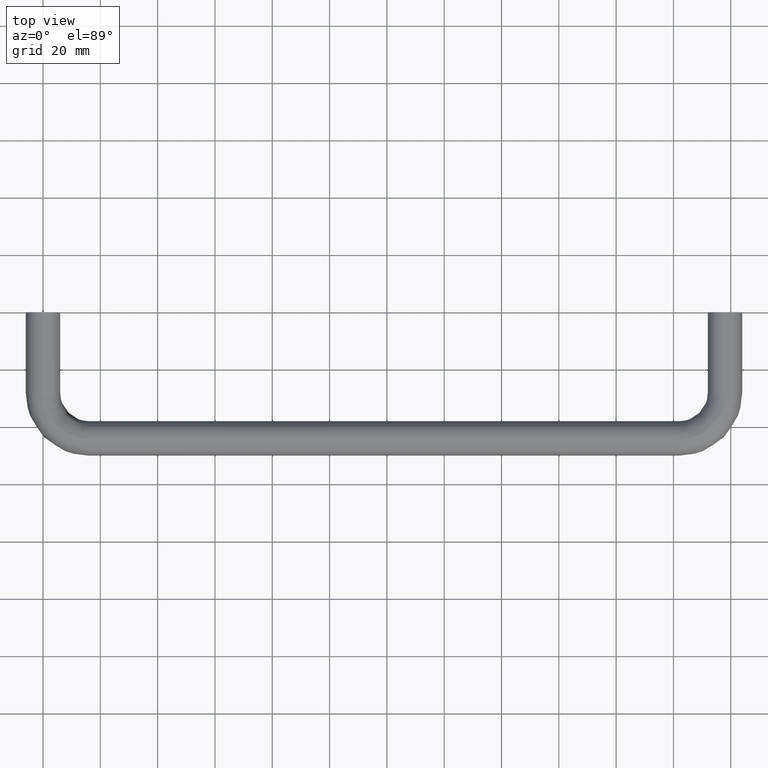
[diagram: clean part render]
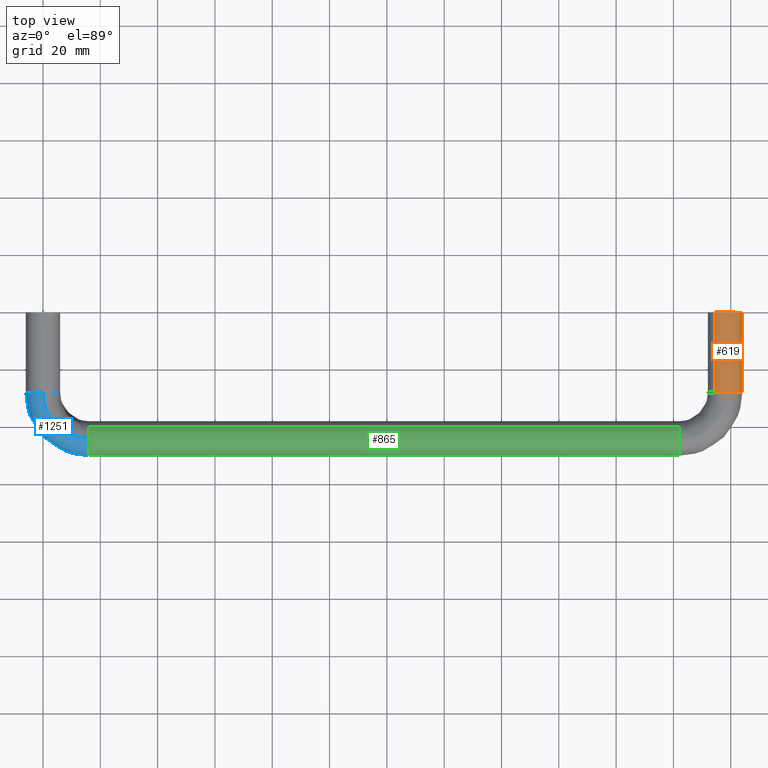
[diagram: same view with three faces highlighted in distinct colors, each labeled with its STEP entity id]
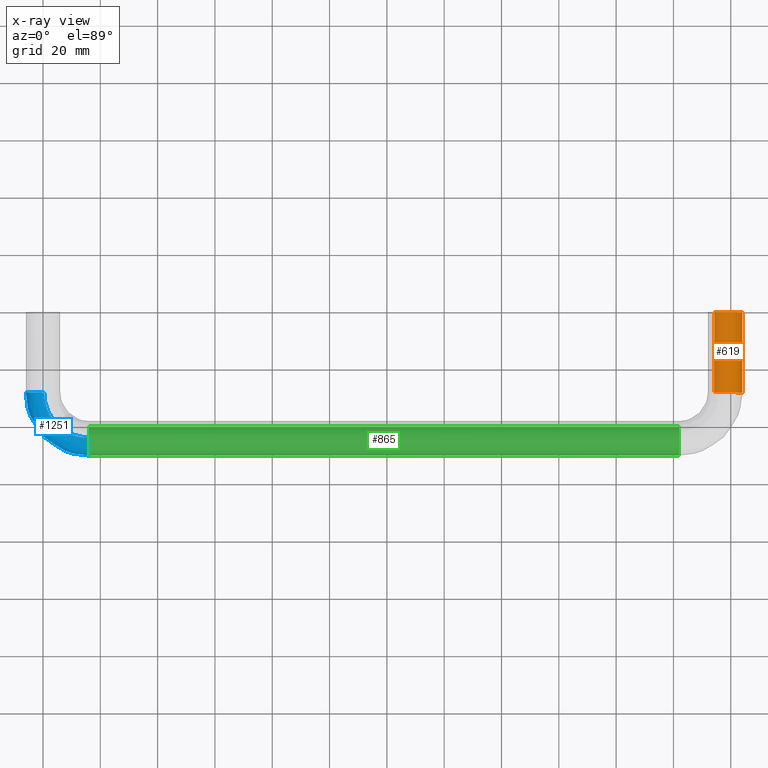
[diagram: x-ray of the same camera — body ghosted, the three highlighted faces saturated]
A machine part, top view with three faces highlighted in distinct colors.
The next image is the same camera in x-ray (body ghosted, the three faces saturated) — at least one of them is partly hidden behind the body in this view.
Their STEP definitions:

[orange] entity #619 — the highlighted face is a freeform B-spline surface patch.
#428=CARTESIAN_POINT('',(241.735087819828290,-28.0,-4.695648941112443));
#429=VERTEX_POINT('',#428);
#460=CARTESIAN_POINT('',(234.264912180171710,-28.0,4.695648941112456));
#461=VERTEX_POINT('',#460);
#475=CARTESIAN_POINT('',(234.264912180169400,2.808864E-014,4.695648941110602));
#476=VERTEX_POINT('',#475);
#477=CARTESIAN_POINT('',(234.264912180171710,-28.0,4.695648941112456));
#478=CARTESIAN_POINT('',(234.264912180169400,2.808864E-014,4.695648941110602));
#479=QUASI_UNIFORM_CURVE('',1,(#477,#478),.UNSPECIFIED.,.F.,.U.);
#480=EDGE_CURVE('',#461,#476,#479,.T.);
#497=CARTESIAN_POINT('',(241.735087819830600,2.853273E-014,-4.695648941110592));
#498=VERTEX_POINT('',#497);
#514=CARTESIAN_POINT('',(241.735087819828290,-28.0,-4.695648941112443));
#515=CARTESIAN_POINT('',(241.735087819830600,2.853273E-014,-4.695648941110592));
#516=QUASI_UNIFORM_CURVE('',1,(#514,#515),.UNSPECIFIED.,.F.,.U.);
#517=EDGE_CURVE('',#429,#498,#516,.T.);
#522=CARTESIAN_POINT('',(234.264912180174290,-28.700000000250508,4.695648941114484));
#523=CARTESIAN_POINT('',(238.960561121288830,-28.700000000250519,8.430736760940201));
#524=CARTESIAN_POINT('',(242.695648941114510,-28.700000000250508,3.735087819825715));
#525=CARTESIAN_POINT('',(246.430736760940140,-28.700000000250519,-0.960561121288768));
#526=CARTESIAN_POINT('',(241.735087819825710,-28.700000000250508,-4.695648941114484));
#527=CARTESIAN_POINT('',(234.264912180174290,0.717500000006293,4.695648941114484));
#528=CARTESIAN_POINT('',(238.960561121288830,0.717500000006293,8.430736760940201));
#529=CARTESIAN_POINT('',(242.695648941114510,0.717500000006293,3.735087819825715));
#530=CARTESIAN_POINT('',(246.430736760940140,0.717500000006293,-0.960561121288768));
#531=CARTESIAN_POINT('',(241.735087819825710,0.717500000006293,-4.695648941114484));
#539=(BOUNDED_SURFACE()B_SPLINE_SURFACE(2,1,((#522,#527),(#523,#528),(#524,#529),(#525,#530),(#526,#531)),.UNSPECIFIED.,.F.,.F.,.U.)B_SPLINE_SURFACE_WITH_KNOTS((3,2,3),(2,2),(0.0,9.941125496954282,19.882250993908560),(0.0,29.417500000256808),.UNSPECIFIED.)GEOMETRIC_REPRESENTATION_ITEM()RATIONAL_B_SPLINE_SURFACE(((1.0,1.0),(0.707106781186548,0.707106781186548),(1.0,1.0),(0.707106781186548,0.707106781186548),(1.0,1.0)))REPRESENTATION_ITEM('')SURFACE());
#540=CARTESIAN_POINT('',(244.0,-28.0,0.0));
#541=VERTEX_POINT('',#540);
#542=CARTESIAN_POINT('',(241.735087819828290,-27.999999999999996,-4.695648941112443));
#543=CARTESIAN_POINT('',(244.000000000000030,-28.0,-2.894056444901385));
#544=CARTESIAN_POINT('',(244.0,-28.0,0.0));
#552=(BOUNDED_CURVE()B_SPLINE_CURVE(2,(#542,#543,#544),.UNSPECIFIED.,.F.,.U.)B_SPLINE_CURVE_WITH_KNOTS((3,3),(0.357863877391611,0.500000000000000),.UNSPECIFIED.)CURVE()GEOMETRIC_REPRESENTATION_ITEM()RATIONAL_B_SPLINE_CURVE((0.856305618644017,0.833477174158261,1.0))REPRESENTATION_ITEM(''));
#553=EDGE_CURVE('',#429,#541,#552,.T.);
#554=ORIENTED_EDGE('',*,*,#553,.F.);
#555=ORIENTED_EDGE('',*,*,#517,.T.);
#556=CARTESIAN_POINT('',(244.0,2.775558E-014,0.0));
#557=VERTEX_POINT('',#556);
#558=CARTESIAN_POINT('',(241.735087819830570,2.853273E-014,-4.695648941110592));
#559=CARTESIAN_POINT('',(244.0,2.775558E-014,-2.894056444897718));
#560=CARTESIAN_POINT('',(244.0,2.775558E-014,0.0));
#568=(BOUNDED_CURVE()B_SPLINE_CURVE(2,(#558,#559,#560),.UNSPECIFIED.,.F.,.U.)B_SPLINE_CURVE_WITH_KNOTS((3,3),(0.357863877391761,0.500000000000000),.UNSPECIFIED.)CURVE()GEOMETRIC_REPRESENTATION_ITEM()RATIONAL_B_SPLINE_CURVE((0.856305618643969,0.833477174158437,1.0))REPRESENTATION_ITEM(''));
#569=EDGE_CURVE('',#498,#557,#568,.T.);
#570=ORIENTED_EDGE('',*,*,#569,.T.);
#571=CARTESIAN_POINT('',(244.0,2.775558E-014,0.0));
#572=CARTESIAN_POINT('',(243.999999999999970,2.775558E-014,6.0));
#573=CARTESIAN_POINT('',(238.0,2.775558E-014,6.0));
#574=CARTESIAN_POINT('',(235.904706199463790,2.775558E-014,6.0));
#575=CARTESIAN_POINT('',(234.264912180169380,2.808864E-014,4.695648941110602));
#583=(BOUNDED_CURVE()B_SPLINE_CURVE(2,(#571,#572,#573,#574,#575),.UNSPECIFIED.,.F.,.U.)B_SPLINE_CURVE_WITH_KNOTS((3,2,3),(0.500000000000000,0.750000000000000,0.857863877391760),.UNSPECIFIED.)CURVE()GEOMETRIC_REPRESENTATION_ITEM()RATIONAL_B_SPLINE_CURVE((1.0,0.707106781186548,1.0,0.873629607028112,0.856305618643969))REPRESENTATION_ITEM(''));
#584=EDGE_CURVE('',#557,#476,#583,.T.);
#585=ORIENTED_EDGE('',*,*,#584,.T.);
#586=ORIENTED_EDGE('',*,*,#480,.F.);
#587=CARTESIAN_POINT('',(238.418400041081100,-27.999999988341919,5.985394005879900));
#588=VERTEX_POINT('',#587);
#589=CARTESIAN_POINT('',(238.418400041081160,-27.999999988341923,5.985394005879900));
#590=CARTESIAN_POINT('',(238.209455228823490,-28.000000000000004,6.0));
#591=CARTESIAN_POINT('',(238.0,-28.0,6.0));
#592=CARTESIAN_POINT('',(235.904706199467060,-28.000000000000007,6.0));
#593=CARTESIAN_POINT('',(234.264912180171760,-28.000000000000004,4.695648941112456));
#601=(BOUNDED_CURVE()B_SPLINE_CURVE(2,(#589,#590,#591,#592,#593),.UNSPECIFIED.,.F.,.U.)B_SPLINE_CURVE_WITH_KNOTS((3,2,3),(0.737833655983836,0.750000000000000,0.857863877391610),.UNSPECIFIED.)CURVE()GEOMETRIC_REPRESENTATION_ITEM()RATIONAL_B_SPLINE_CURVE((0.972879811768446,0.985746241359656,1.0,0.873629607028287,0.856305618644017))REPRESENTATION_ITEM(''));
#602=EDGE_CURVE('',#588,#461,#601,.T.);
#603=ORIENTED_EDGE('',*,*,#602,.F.);
#604=CARTESIAN_POINT('',(244.0,-28.0,0.0));
#605=CARTESIAN_POINT('',(244.000000000000030,-28.000000000000004,5.595220087228519));
#606=CARTESIAN_POINT('',(238.418400041081070,-27.999999988341916,5.985394005879900));
#614=(BOUNDED_CURVE()B_SPLINE_CURVE(2,(#604,#605,#606),.UNSPECIFIED.,.F.,.U.)B_SPLINE_CURVE_WITH_KNOTS((3,3),(0.500000000000000,0.737833655983837),.UNSPECIFIED.)CURVE()GEOMETRIC_REPRESENTATION_ITEM()RATIONAL_B_SPLINE_CURVE((1.0,0.721360539826891,0.972879811768448))REPRESENTATION_ITEM(''));
#615=EDGE_CURVE('',#541,#588,#614,.T.);
#616=ORIENTED_EDGE('',*,*,#615,.F.);
#617=EDGE_LOOP('',(#554,#555,#570,#585,#586,#603,#616));
#618=FACE_OUTER_BOUND('',#617,.T.);
#619=ADVANCED_FACE('',(#618),#539,.T.);

[blue] entity #1251 — the highlighted face is a freeform B-spline surface patch.
#661=CARTESIAN_POINT('',(16.0,-48.467995918622279,-4.004623886355851));
#662=VERTEX_POINT('',#661);
#668=CARTESIAN_POINT('',(15.999999987035700,-43.581599959342967,-5.985394005909544));
#669=VERTEX_POINT('',#668);
#670=CARTESIAN_POINT('',(15.999999987035705,-43.581599959342974,-5.985394005909544));
#671=CARTESIAN_POINT('',(15.999999999999998,-43.790544771602143,-6.0));
#672=CARTESIAN_POINT('',(16.0,-44.0,-6.0));
#673=CARTESIAN_POINT('',(16.000000000000004,-46.679558553749793,-6.000000000000001));
#674=CARTESIAN_POINT('',(16.000000000000007,-48.467995918622279,-4.004623886355851));
#682=(BOUNDED_CURVE()B_SPLINE_CURVE(2,(#670,#671,#672,#673,#674),.UNSPECIFIED.,.F.,.U.)B_SPLINE_CURVE_WITH_KNOTS((3,2,3),(0.237833656008206,0.250000000000000,0.383246001619684),.UNSPECIFIED.)CURVE()GEOMETRIC_REPRESENTATION_ITEM()RATIONAL_B_SPLINE_CURVE((0.972879811819991,0.985746241388207,1.0,0.843892598766353,0.854190693833691))REPRESENTATION_ITEM(''));
#683=EDGE_CURVE('',#669,#662,#682,.T.);
#817=CARTESIAN_POINT('',(15.999999999095181,-44.075396245465733,5.999526265145413));
#818=VERTEX_POINT('',#817);
#834=CARTESIAN_POINT('',(16.0,-49.999999999999993,0.0));
#835=VERTEX_POINT('',#834);
#836=CARTESIAN_POINT('',(16.0,-49.999999999999993,0.0));
#837=CARTESIAN_POINT('',(16.000000000000004,-49.999999999999979,5.925071567264703));
#838=CARTESIAN_POINT('',(15.999999999095184,-44.075396245465733,5.999526265145413));
#846=(BOUNDED_CURVE()B_SPLINE_CURVE(2,(#836,#837,#838),.UNSPECIFIED.,.F.,.U.)B_SPLINE_CURVE_WITH_KNOTS((3,3),(0.500000000000000,0.747784295560256),.UNSPECIFIED.)CURVE()GEOMETRIC_REPRESENTATION_ITEM()RATIONAL_B_SPLINE_CURVE((1.0,0.709702640407731,0.994854294812044))REPRESENTATION_ITEM(''));
#847=EDGE_CURVE('',#835,#818,#846,.T.);
#849=CARTESIAN_POINT('',(16.000000000000007,-48.467995918622279,-4.004623886355851));
#850=CARTESIAN_POINT('',(15.999999999999996,-50.000000000000007,-2.295352759489609));
#851=CARTESIAN_POINT('',(16.0,-49.999999999999993,0.0));
#859=(BOUNDED_CURVE()B_SPLINE_CURVE(2,(#849,#850,#851),.UNSPECIFIED.,.F.,.U.)B_SPLINE_CURVE_WITH_KNOTS((3,3),(0.383246001619684,0.500000000000000),.UNSPECIFIED.)CURVE()GEOMETRIC_REPRESENTATION_ITEM()RATIONAL_B_SPLINE_CURVE((0.854190693833691,0.863214182420194,1.0))REPRESENTATION_ITEM(''));
#860=EDGE_CURVE('',#662,#835,#859,.T.);
#884=CARTESIAN_POINT('',(-0.075396262307778,-28.000000005107950,5.999526264933758));
#885=VERTEX_POINT('',#884);
#942=CARTESIAN_POINT('',(-3.735087819828275,-28.0,-4.695648941112445));
#943=VERTEX_POINT('',#942);
#949=CARTESIAN_POINT('',(-5.999999999999996,-28.0,0.0));
#950=VERTEX_POINT('',#949);
#951=CARTESIAN_POINT('',(-3.735087819828274,-27.999999999999996,-4.695648941112445));
#952=CARTESIAN_POINT('',(-5.999999999999997,-27.999999999999996,-2.894056444901388));
#953=CARTESIAN_POINT('',(-5.999999999999996,-28.0,0.0));
#961=(BOUNDED_CURVE()B_SPLINE_CURVE(2,(#951,#952,#953),.UNSPECIFIED.,.F.,.U.)B_SPLINE_CURVE_WITH_KNOTS((3,3),(0.357863877391611,0.500000000000000),.UNSPECIFIED.)CURVE()GEOMETRIC_REPRESENTATION_ITEM()RATIONAL_B_SPLINE_CURVE((0.856305618644017,0.833477174158261,1.0))REPRESENTATION_ITEM(''));
#962=EDGE_CURVE('',#943,#950,#961,.T.);
#964=CARTESIAN_POINT('',(-5.999999999999996,-28.0,0.0));
#965=CARTESIAN_POINT('',(-5.999999999999996,-28.000000000000004,5.925071533995980));
#966=CARTESIAN_POINT('',(-0.075396262307778,-28.000000005107950,5.999526264933758));
#974=(BOUNDED_CURVE()B_SPLINE_CURVE(2,(#964,#965,#966),.UNSPECIFIED.,.F.,.U.)B_SPLINE_CURVE_WITH_KNOTS((3,3),(0.500000000000000,0.747784294572857),.UNSPECIFIED.)CURVE()GEOMETRIC_REPRESENTATION_ITEM()RATIONAL_B_SPLINE_CURVE((1.0,0.709702641564541,0.994854292539434))REPRESENTATION_ITEM(''));
#975=EDGE_CURVE('',#950,#885,#974,.T.);
#1013=CARTESIAN_POINT('',(0.418400040314895,-28.000000020989962,-5.985394005933461));
#1014=VERTEX_POINT('',#1013);
#1028=CARTESIAN_POINT('',(0.418400040314895,-28.000000020989955,-5.985394005933461));
#1029=CARTESIAN_POINT('',(0.209455228054476,-27.999999999999996,-6.0));
#1030=CARTESIAN_POINT('',(3.428898E-015,-28.0,-6.0));
#1031=CARTESIAN_POINT('',(-2.095293800532903,-27.999999999999989,-5.999999999999999));
#1032=CARTESIAN_POINT('',(-3.735087819828275,-28.000000000000004,-4.695648941112445));
#1040=(BOUNDED_CURVE()B_SPLINE_CURVE(2,(#1028,#1029,#1030,#1031,#1032),.UNSPECIFIED.,.F.,.U.)B_SPLINE_CURVE_WITH_KNOTS((3,2,3),(0.237833656027867,0.250000000000000,0.357863877391610),.UNSPECIFIED.)CURVE()GEOMETRIC_REPRESENTATION_ITEM()RATIONAL_B_SPLINE_CURVE((0.972879811861576,0.985746241411242,1.0,0.873629607028287,0.856305618644017))REPRESENTATION_ITEM(''));
#1041=EDGE_CURVE('',#1014,#943,#1040,.T.);
#1182=CARTESIAN_POINT('',(0.546684337351558,-26.922813453710905,-5.979047711065803));
#1183=CARTESIAN_POINT('',(-0.691926900240780,-44.691927358593141,-5.979047711065801));
#1184=CARTESIAN_POINT('',(17.077186970629782,-43.453315633069401,-5.979047711065804));
#1185=CARTESIAN_POINT('',(0.501269945954551,-26.919647804830838,-5.982230033031987));
#1186=CARTESIAN_POINT('',(-0.740981337357471,-44.740981797056833,-5.982230033031986));
#1187=CARTESIAN_POINT('',(17.080352620756912,-43.498730024379491,-5.982230033031989));
#1188=CARTESIAN_POINT('',(0.285231963537030,-26.904588693037091,-5.997368459328781));
#1189=CARTESIAN_POINT('',(-0.974335155328387,-44.974335621435536,-5.997368459328783));
#1190=CARTESIAN_POINT('',(17.095411738482944,-43.714768006383508,-5.997368459328781));
#1191=CARTESIAN_POINT('',(0.113943897119562,-26.892648912299236,-5.999526265222896));
#1192=CARTESIAN_POINT('',(-1.159352270486051,-45.159352741673686,-5.999526265222896));
#1193=CARTESIAN_POINT('',(17.107351523924276,-43.886056072473103,-5.999526265222895));
#1194=CARTESIAN_POINT('',(-5.871059703111108,-26.475459132552292,-6.074922504523007));
#1195=CARTESIAN_POINT('',(-7.624064748611073,-51.624065397316620,-6.074922504523005));
#1196=CARTESIAN_POINT('',(17.524541468016576,-49.871059661247941,-6.074922504523006));
#1197=CARTESIAN_POINT('',(-5.946273435613747,-26.470216295188671,-0.075396239300112));
#1198=CARTESIAN_POINT('',(-7.705306997992081,-51.705307648928503,-0.075396239300112));
#1199=CARTESIAN_POINT('',(17.529784307445532,-49.946273393606596,-0.075396239300112));
#1200=CARTESIAN_POINT('',(-6.021487168116381,-26.464973457825039,5.924130025922782));
#1201=CARTESIAN_POINT('',(-7.786549247373084,-51.786549900540393,5.924130025922781));
#1202=CARTESIAN_POINT('',(17.535027146874498,-50.021487125965294,5.924130025922783));
#1203=CARTESIAN_POINT('',(0.007550743690728,-26.885232686811289,6.000080988614024));
#1204=CARTESIAN_POINT('',(-1.274273027848995,-45.274273502192301,6.000080988614025));
#1205=CARTESIAN_POINT('',(17.114767752333744,-43.992449225698287,6.000080988614021));
#1206=CARTESIAN_POINT('',(0.051317477026348,-26.888283484281114,6.000632341181269));
#1207=CARTESIAN_POINT('',(-1.226998311571356,-45.226998784616512,6.000632341181269));
#1208=CARTESIAN_POINT('',(17.111716953662096,-43.948682492446430,6.000632341181266));
#1216=(BOUNDED_SURFACE()B_SPLINE_SURFACE(2,2,((#1182,#1185,#1188,#1191,#1194,#1197,#1200,#1203,#1206),(#1183,#1186,#1189,#1192,#1195,#1198,#1201,#1204,#1207),(#1184,#1187,#1190,#1193,#1196,#1199,#1202,#1205,#1208)),.UNSPECIFIED.,.F.,.F.,.U.)B_SPLINE_SURFACE_WITH_KNOTS((3,3),(3,1,2,2,1,3),(0.0,40.091364059811198),(0.0,0.103626386772942,0.501271027427271,10.442396524381550,20.383522021335839,20.487275556953769),.UNSPECIFIED.)GEOMETRIC_REPRESENTATION_ITEM()RATIONAL_B_SPLINE_SURFACE(((0.896240615320776,0.898830857351433,0.911360612797192,0.922164430830710,0.652068722409428,0.922164430830710,0.652068722409428,0.924983365639703,0.927802300448697),(0.588135460132467,0.589835241600203,0.598057579841146,0.605147314876259,0.427903769965834,0.605147314876259,0.427903769965834,0.606997170252850,0.608847025629442),(0.896240626533087,0.898830868596149,0.911360624198660,0.922164442367337,0.652068730567055,0.922164442367337,0.652068730567055,0.924983377211597,0.927802312055857)))REPRESENTATION_ITEM('')SURFACE());
#1217=ORIENTED_EDGE('',*,*,#683,.T.);
#1218=ORIENTED_EDGE('',*,*,#860,.T.);
#1219=ORIENTED_EDGE('',*,*,#847,.T.);
#1220=CARTESIAN_POINT('',(-0.075396262307778,-28.000000005107953,5.999526264933758));
#1221=CARTESIAN_POINT('',(-0.075396229084197,-44.075396237490494,5.999526265222896));
#1222=CARTESIAN_POINT('',(15.999999999095181,-44.075396245465726,5.999526265145413));
#1230=(BOUNDED_CURVE()B_SPLINE_CURVE(2,(#1220,#1221,#1222),.UNSPECIFIED.,.F.,.U.)B_SPLINE_CURVE_WITH_KNOTS((3,3),(-1.744561812646428,-0.255438186802944),.UNSPECIFIED.)CURVE()GEOMETRIC_REPRESENTATION_ITEM()RATIONAL_B_SPLINE_CURVE((0.894678509806906,0.632633241571481,0.894678510000697))REPRESENTATION_ITEM(''));
#1231=EDGE_CURVE('',#885,#818,#1230,.T.);
#1232=ORIENTED_EDGE('',*,*,#1231,.F.);
#1233=ORIENTED_EDGE('',*,*,#975,.F.);
#1234=ORIENTED_EDGE('',*,*,#962,.F.);
#1235=ORIENTED_EDGE('',*,*,#1041,.F.);
#1236=CARTESIAN_POINT('',(0.418400040314895,-28.000000020989958,-5.985394005933461));
#1237=CARTESIAN_POINT('',(0.418399551432572,-43.581600464618766,-5.985394043042593));
#1238=CARTESIAN_POINT('',(15.999999987035707,-43.581599959342974,-5.985394005909544));
#1246=(BOUNDED_CURVE()B_SPLINE_CURVE(2,(#1236,#1237,#1238),.UNSPECIFIED.,.F.,.U.)B_SPLINE_CURVE_WITH_KNOTS((3,3),(-1.744561810478682,-0.255438188436605),.UNSPECIFIED.)CURVE()GEOMETRIC_REPRESENTATION_ITEM()RATIONAL_B_SPLINE_CURVE((0.874553432437223,0.618402664065844,0.874553432810395))REPRESENTATION_ITEM(''));
#1247=EDGE_CURVE('',#1014,#669,#1246,.T.);
#1248=ORIENTED_EDGE('',*,*,#1247,.T.);
#1249=EDGE_LOOP('',(#1217,#1218,#1219,#1232,#1233,#1234,#1235,#1248));
#1250=FACE_OUTER_BOUND('',#1249,.T.);
#1251=ADVANCED_FACE('',(#1250),#1216,.T.);

[green] entity #865 — the highlighted face is a freeform B-spline surface patch.
#644=CARTESIAN_POINT('',(222.0,-48.467995932519713,-4.004623870850338));
#645=VERTEX_POINT('',#644);
#661=CARTESIAN_POINT('',(16.0,-48.467995918622279,-4.004623886355851));
#662=VERTEX_POINT('',#661);
#663=CARTESIAN_POINT('',(16.0,-48.467995918622279,-4.004623886355851));
#664=CARTESIAN_POINT('',(222.0,-48.467995932519713,-4.004623870850338));
#665=QUASI_UNIFORM_CURVE('',1,(#663,#664),.UNSPECIFIED.,.F.,.U.);
#666=EDGE_CURVE('',#662,#645,#665,.T.);
#700=CARTESIAN_POINT('',(16.0,-40.024279710705102,4.493734324733596));
#701=VERTEX_POINT('',#700);
#715=CARTESIAN_POINT('',(222.0,-40.024279710705088,4.493734324733588));
#716=VERTEX_POINT('',#715);
#717=CARTESIAN_POINT('',(16.0,-40.024279710705102,4.493734324733596));
#718=CARTESIAN_POINT('',(222.0,-40.024279710705088,4.493734324733588));
#719=QUASI_UNIFORM_CURVE('',1,(#717,#718),.UNSPECIFIED.,.F.,.U.);
#720=EDGE_CURVE('',#701,#716,#719,.T.);
#753=CARTESIAN_POINT('',(10.849999986672650,-40.024279710705578,4.493734324734011));
#754=CARTESIAN_POINT('',(10.849999986672650,-44.518014035439599,8.469454614028436));
#755=CARTESIAN_POINT('',(10.849999986672650,-48.493734324734007,3.975720289294424));
#756=CARTESIAN_POINT('',(10.849999986672650,-52.034080247159984,-0.025912832602382));
#757=CARTESIAN_POINT('',(10.849999986672648,-48.467994806516181,-4.004625127142923));
#758=CARTESIAN_POINT('',(227.278750001929810,-40.024279710705549,4.493734324734011));
#759=CARTESIAN_POINT('',(227.278750001929780,-44.518014035439563,8.469454614028436));
#760=CARTESIAN_POINT('',(227.278750001929810,-48.493734324733992,3.975720289294424));
#761=CARTESIAN_POINT('',(227.278750001929690,-52.034080247159956,-0.025912832602382));
#762=CARTESIAN_POINT('',(227.278750001929780,-48.467994806516145,-4.004625127142923));
#770=(BOUNDED_SURFACE()B_SPLINE_SURFACE(2,1,((#753,#758),(#754,#759),(#755,#760),(#756,#761),(#757,#762)),.UNSPECIFIED.,.F.,.F.,.U.)B_SPLINE_SURFACE_WITH_KNOTS((3,2,3),(2,2),(0.0,9.941125496954280,19.086960954152222),(0.0,216.428750015257210),.UNSPECIFIED.)GEOMETRIC_REPRESENTATION_ITEM()RATIONAL_B_SPLINE_SURFACE(((1.0,1.0),(0.707106781186548,0.707106781186548),(1.0,1.0),(0.730538238691624,0.730538238691624),(0.956886118190660,0.956886118190660)))REPRESENTATION_ITEM('')SURFACE());
#771=CARTESIAN_POINT('',(222.0,-49.999999999999993,0.0));
#772=VERTEX_POINT('',#771);
#773=CARTESIAN_POINT('',(221.999999999999970,-48.467995932519884,-4.004623870850502));
#774=CARTESIAN_POINT('',(222.0,-49.999999999999986,-2.295352747554896));
#775=CARTESIAN_POINT('',(222.0,-49.999999999999993,0.0));
#783=(BOUNDED_CURVE()B_SPLINE_CURVE(2,(#773,#774,#775),.UNSPECIFIED.,.F.,.U.)B_SPLINE_CURVE_WITH_KNOTS((3,3),(0.383246002143710,0.500000000000000),.UNSPECIFIED.)CURVE()GEOMETRIC_REPRESENTATION_ITEM()RATIONAL_B_SPLINE_CURVE((0.854190693914692,0.863214183034129,1.0))REPRESENTATION_ITEM(''));
#784=EDGE_CURVE('',#645,#772,#783,.T.);
#785=ORIENTED_EDGE('',*,*,#784,.T.);
#786=CARTESIAN_POINT('',(221.999999978992090,-44.418400041564851,5.985394005846084));
#787=VERTEX_POINT('',#786);
#788=CARTESIAN_POINT('',(222.0,-49.999999999999993,0.0));
#789=CARTESIAN_POINT('',(221.999999999999940,-49.999999999999986,5.595220086321878));
#790=CARTESIAN_POINT('',(221.999999978992070,-44.418400041564858,5.985394005846084));
#798=(BOUNDED_CURVE()B_SPLINE_CURVE(2,(#788,#789,#790),.UNSPECIFIED.,.F.,.U.)B_SPLINE_CURVE_WITH_KNOTS((3,3),(0.500000000000000,0.737833655956037),.UNSPECIFIED.)CURVE()GEOMETRIC_REPRESENTATION_ITEM()RATIONAL_B_SPLINE_CURVE((1.0,0.721360539859461,0.972879811709648))REPRESENTATION_ITEM(''));
#799=EDGE_CURVE('',#772,#787,#798,.T.);
#800=ORIENTED_EDGE('',*,*,#799,.T.);
#801=CARTESIAN_POINT('',(221.999999978992150,-44.418400041564858,5.985394005846084));
#802=CARTESIAN_POINT('',(222.000000000000060,-44.209455229309008,6.0));
#803=CARTESIAN_POINT('',(222.0,-44.0,6.0));
#804=CARTESIAN_POINT('',(221.999999999999970,-41.726803347827378,6.0));
#805=CARTESIAN_POINT('',(222.000000000000030,-40.024279710705088,4.493734324733588));
#813=(BOUNDED_CURVE()B_SPLINE_CURVE(2,(#801,#802,#803,#804,#805),.UNSPECIFIED.,.F.,.U.)B_SPLINE_CURVE_WITH_KNOTS((3,2,3),(0.737833655956036,0.750000000000000,0.865779888059604),.UNSPECIFIED.)CURVE()GEOMETRIC_REPRESENTATION_ITEM()RATIONAL_B_SPLINE_CURVE((0.972879811709646,0.985746241327086,1.0,0.864355423649445,0.854350158224968))REPRESENTATION_ITEM(''));
#814=EDGE_CURVE('',#787,#716,#813,.T.);
#815=ORIENTED_EDGE('',*,*,#814,.T.);
#816=ORIENTED_EDGE('',*,*,#720,.F.);
#817=CARTESIAN_POINT('',(15.999999999095181,-44.075396245465733,5.999526265145413));
#818=VERTEX_POINT('',#817);
#819=CARTESIAN_POINT('',(15.999999999095179,-44.075396245465726,5.999526265145413));
#820=CARTESIAN_POINT('',(16.000000000000004,-44.037699614117692,6.0));
#821=CARTESIAN_POINT('',(16.0,-44.0,6.0));
#822=CARTESIAN_POINT('',(15.999999999999996,-41.726803347827378,6.000000000000001));
#823=CARTESIAN_POINT('',(16.000000000000004,-40.024279710705109,4.493734324733596));
#831=(BOUNDED_CURVE()B_SPLINE_CURVE(2,(#819,#820,#821,#822,#823),.UNSPECIFIED.,.F.,.U.)B_SPLINE_CURVE_WITH_KNOTS((3,2,3),(0.747784295560257,0.750000000000000,0.865779888059604),.UNSPECIFIED.)CURVE()GEOMETRIC_REPRESENTATION_ITEM()RATIONAL_B_SPLINE_CURVE((0.994854294812045,0.997404140778817,1.0,0.864355423649446,0.854350158224968))REPRESENTATION_ITEM(''));
#832=EDGE_CURVE('',#818,#701,#831,.T.);
#833=ORIENTED_EDGE('',*,*,#832,.F.);
#834=CARTESIAN_POINT('',(16.0,-49.999999999999993,0.0));
#835=VERTEX_POINT('',#834);
#836=CARTESIAN_POINT('',(16.0,-49.999999999999993,0.0));
#837=CARTESIAN_POINT('',(16.000000000000004,-49.999999999999979,5.925071567264703));
#838=CARTESIAN_POINT('',(15.999999999095184,-44.075396245465733,5.999526265145413));
#846=(BOUNDED_CURVE()B_SPLINE_CURVE(2,(#836,#837,#838),.UNSPECIFIED.,.F.,.U.)B_SPLINE_CURVE_WITH_KNOTS((3,3),(0.500000000000000,0.747784295560256),.UNSPECIFIED.)CURVE()GEOMETRIC_REPRESENTATION_ITEM()RATIONAL_B_SPLINE_CURVE((1.0,0.709702640407731,0.994854294812044))REPRESENTATION_ITEM(''));
#847=EDGE_CURVE('',#835,#818,#846,.T.);
#848=ORIENTED_EDGE('',*,*,#847,.F.);
#849=CARTESIAN_POINT('',(16.000000000000007,-48.467995918622279,-4.004623886355851));
#850=CARTESIAN_POINT('',(15.999999999999996,-50.000000000000007,-2.295352759489609));
#851=CARTESIAN_POINT('',(16.0,-49.999999999999993,0.0));
#859=(BOUNDED_CURVE()B_SPLINE_CURVE(2,(#849,#850,#851),.UNSPECIFIED.,.F.,.U.)B_SPLINE_CURVE_WITH_KNOTS((3,3),(0.383246001619684,0.500000000000000),.UNSPECIFIED.)CURVE()GEOMETRIC_REPRESENTATION_ITEM()RATIONAL_B_SPLINE_CURVE((0.854190693833691,0.863214182420194,1.0))REPRESENTATION_ITEM(''));
#860=EDGE_CURVE('',#662,#835,#859,.T.);
#861=ORIENTED_EDGE('',*,*,#860,.F.);
#862=ORIENTED_EDGE('',*,*,#666,.T.);
#863=EDGE_LOOP('',(#785,#800,#815,#816,#833,#848,#861,#862));
#864=FACE_OUTER_BOUND('',#863,.T.);
#865=ADVANCED_FACE('',(#864),#770,.T.);